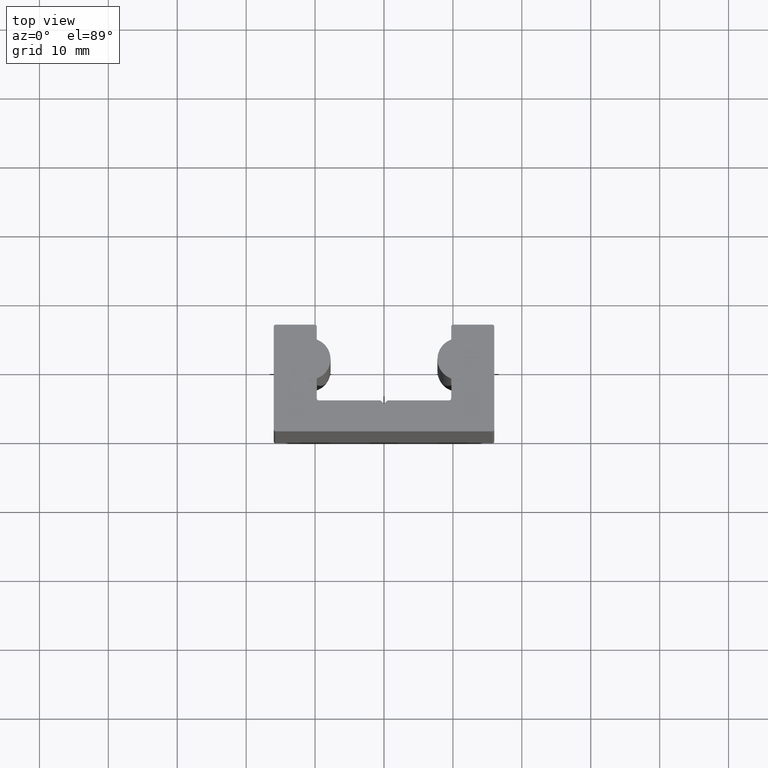
[diagram: clean part render]
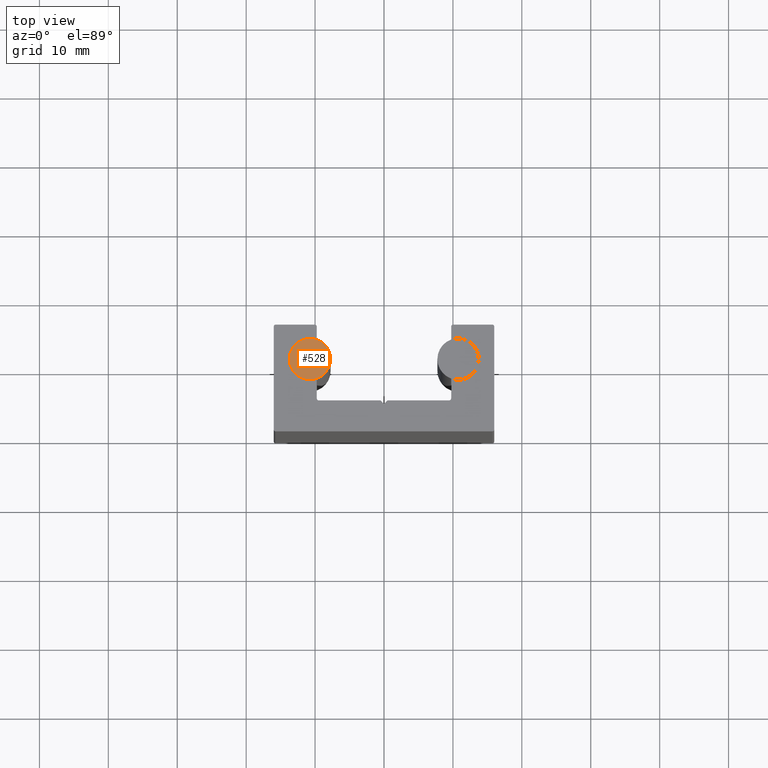
[diagram: same view with one face highlighted and labeled with its STEP entity id]
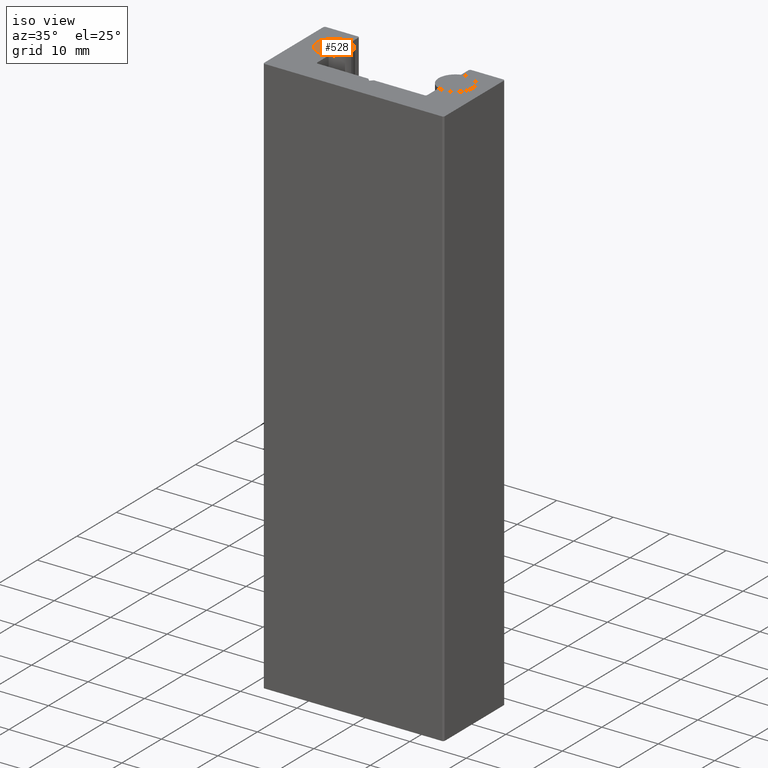
[diagram: same view with one face highlighted and labeled with its STEP entity id]
A machine part, top view. The second image highlights one B-rep face of the part: STEP entity #528.
A second angle (iso view) of the same face is appended — the face is thin or edge-on in the first view.
In plain terms, the highlighted planar face has unit normal (0, 0, -1).
Its self-contained STEP definition (entity closure, byte-faithful):
#47=PLANE('',#645);
#75=FACE_OUTER_BOUND('',#103,.T.);
#103=EDGE_LOOP('',(#489));
#225=CIRCLE('',#644,3.);
#273=VERTEX_POINT('',#958);
#344=EDGE_CURVE('',#273,#273,#225,.T.);
#489=ORIENTED_EDGE('',*,*,#344,.F.);
#528=ADVANCED_FACE('',(#75),#47,.F.);
#644=AXIS2_PLACEMENT_3D('',#959,#800,#801);
#645=AXIS2_PLACEMENT_3D('',#961,#803,#804);
#800=DIRECTION('center_axis',(0.,0.,-1.));
#801=DIRECTION('ref_axis',(-1.,0.,0.));
#803=DIRECTION('center_axis',(0.,0.,-1.));
#804=DIRECTION('ref_axis',(-1.,0.,0.));
#958=CARTESIAN_POINT('',(3.,3.67394039744206E-16,50.));
#959=CARTESIAN_POINT('Origin',(0.,0.,50.));
#961=CARTESIAN_POINT('Origin',(0.,0.,50.));